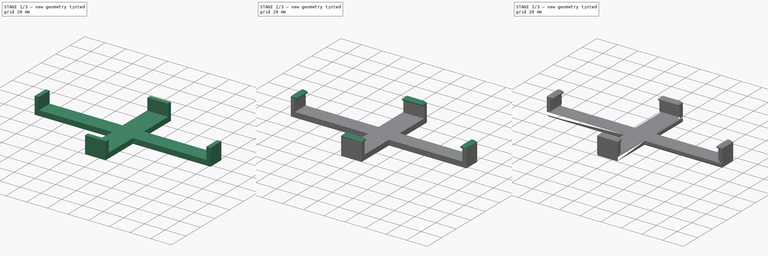
[diagram: build sequence overview — one tinted view per stage of 3, left to right]
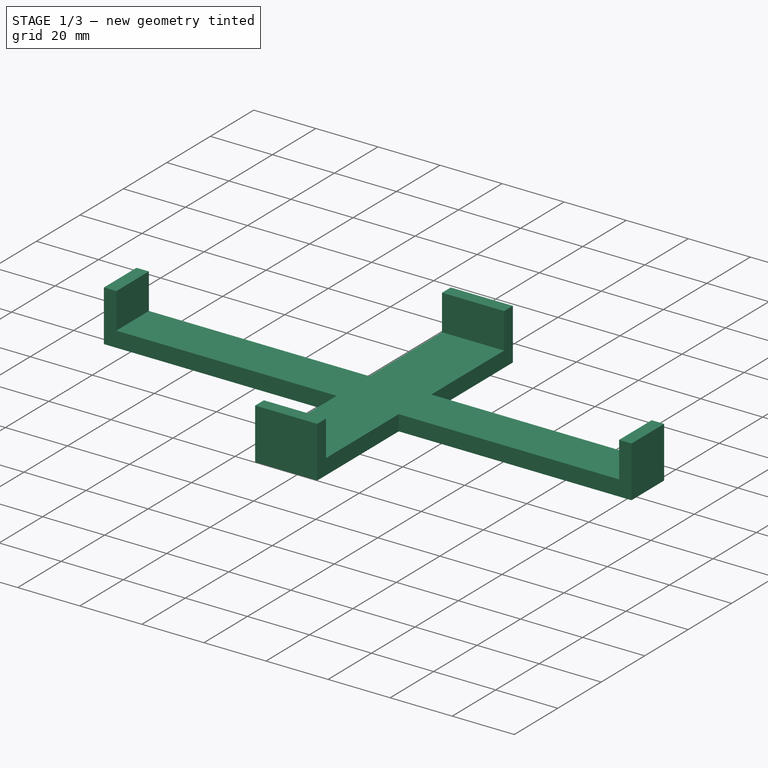
[diagram: stage 1 of 3 — iso view after this stage's code; geometry added in this stage tinted green]
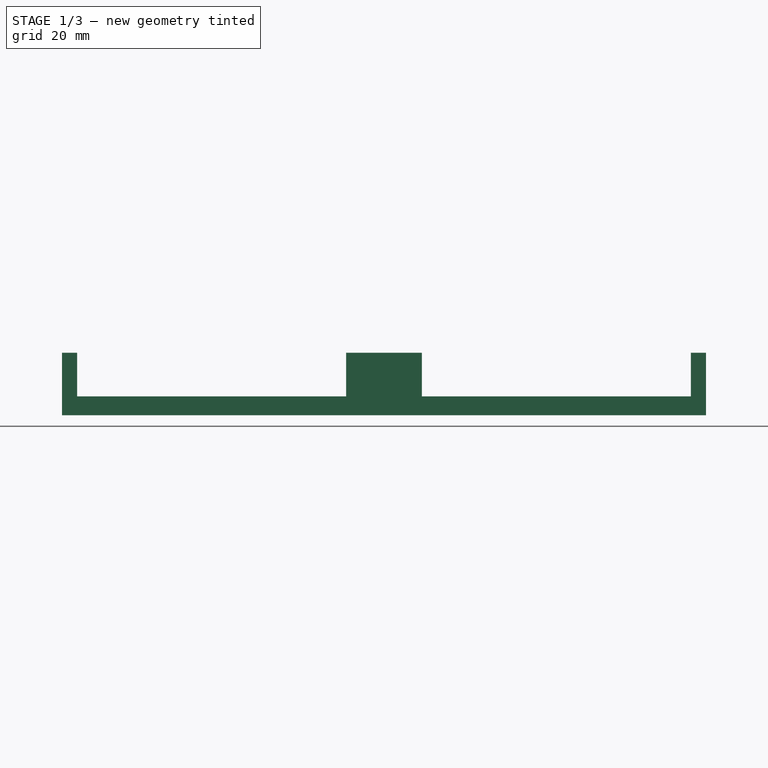
[diagram: stage 1 of 3 — front view after this stage's code; geometry added in this stage tinted green]
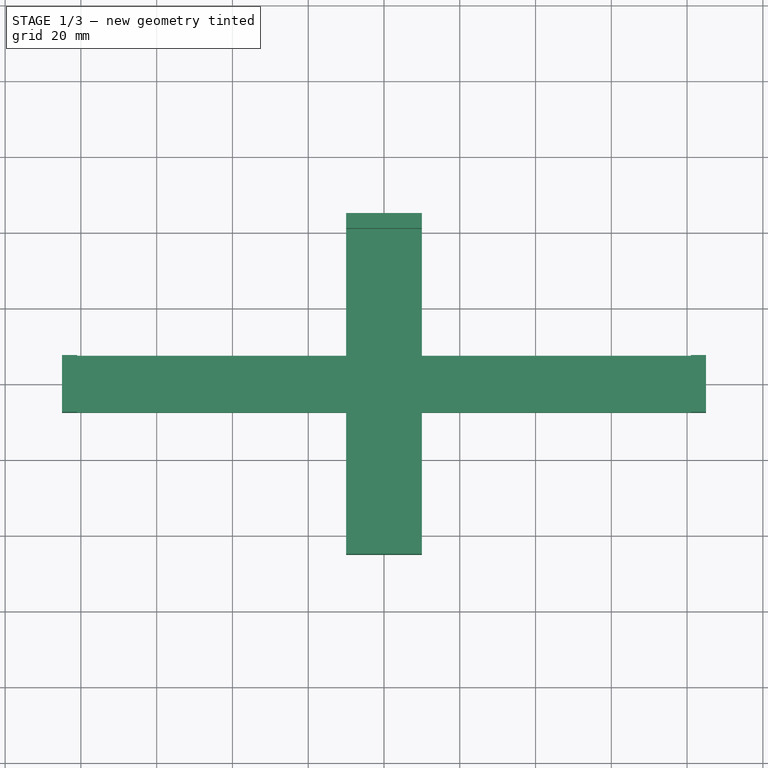
[diagram: stage 1 of 3 — top view after this stage's code; geometry added in this stage tinted green]
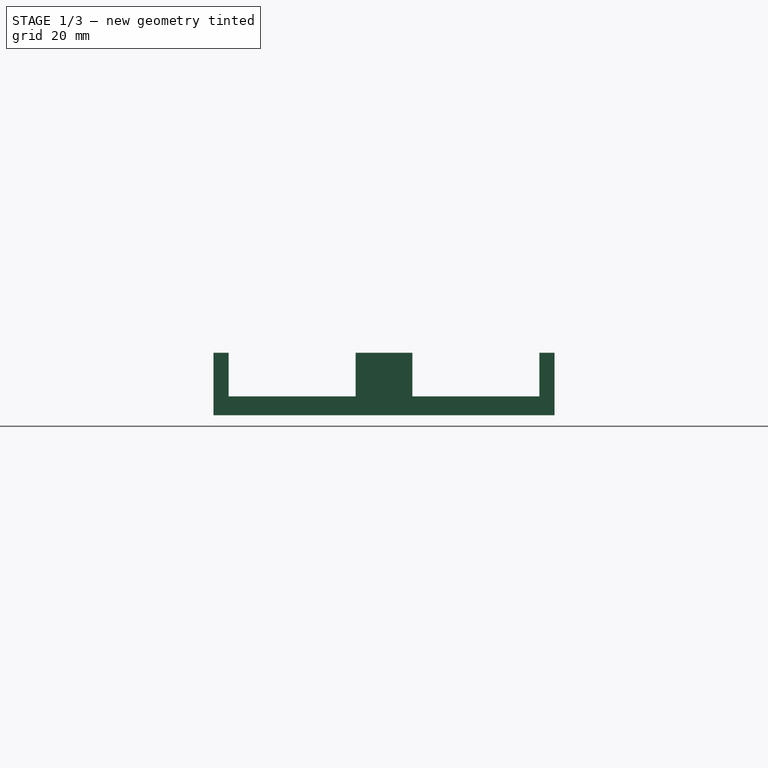
[diagram: stage 1 of 3 — right view after this stage's code; geometry added in this stage tinted green]
FCSTD DOCUMENT  (FreeCAD 0.16R)
Label: pjoneHolder
License: All rights reserved
LicenseURL: http://en.wikipedia.org/wiki/All_rights_reserved
objects: Sketcher::SketchObject×3, PartDesign::Pad×3, PartDesign::Chamfer×3
note: 12 computed .brp shape members not serialized (recipe doc carries the construction recipe); baked Part::Feature solids carry a one-line shape summary decoded from their .brp

FEATURE [Sketcher::SketchObject] Sketch
  sketch-geometry (12):
    g0: LineSegment StartX=-10 StartY=45 StartZ=0 EndX=10 EndY=45 EndZ=0
    g1: LineSegment StartX=10 StartY=45 StartZ=0 EndX=10 EndY=7.5 EndZ=0
    g2: LineSegment StartX=10 StartY=7.5 StartZ=0 EndX=85 EndY=7.5 EndZ=0
    g3: LineSegment StartX=85 StartY=7.5 StartZ=0 EndX=85 EndY=-7.5 EndZ=0
    g4: LineSegment StartX=85 StartY=-7.5 StartZ=0 EndX=10 EndY=-7.5 EndZ=0
    g5: LineSegment StartX=10 StartY=-7.5 StartZ=0 EndX=10 EndY=-45 EndZ=0
    g6: LineSegment StartX=10 StartY=-45 StartZ=0 EndX=-10 EndY=-45 EndZ=0
    g7: LineSegment StartX=-10 StartY=-45 StartZ=0 EndX=-10 EndY=-7.5 EndZ=0
    g8: LineSegment StartX=-10 StartY=-7.5 StartZ=0 EndX=-85 EndY=-7.5 EndZ=0
    g9: LineSegment StartX=-85 StartY=-7.5 StartZ=0 EndX=-85 EndY=7.5 EndZ=0
    g10: LineSegment StartX=-85 StartY=7.5 StartZ=0 EndX=-10 EndY=7.5 EndZ=0
    g11: LineSegment StartX=-10 StartY=7.5 StartZ=0 EndX=-10 EndY=45 EndZ=0
  constraints (33):
    c: Horizontal(g0)
    c: Coincident(g0,g1)
    c: Vertical(g1)
    c: Coincident(g1,g2)
    c: Horizontal(g2)
    c: Coincident(g2,g3)
    c: Coincident(g3,g4)
    c: Horizontal(g4)
    c: Coincident(g4,g5)
    c: Vertical(g5)
    c: Coincident(g5,g6)
    c: Coincident(g6,g7)
    c: Coincident(g7,g8)
    c: Horizontal(g8)
    c: Coincident(g8,g9)
    c: Vertical(g9)
    c: Coincident(g9,g10)
    c: Horizontal(g10)
    c: Coincident(g10,g11)
    c: Coincident(g11,g0)
    c: Vertical(g11)
    c: Vertical(g7)
    c: Vertical(g3)
    c: Symmetric(g0,g0,g-2)
    c: Symmetric(g5,g6,g-2)
    c: Symmetric(g1,g4,g-1)
    c: Symmetric(g10,g7,g-1)
    c: Symmetric(g9,g2,g-2)
    c: Distance(g3) = 15
    c: Distance(g0) = 20
    c: DistanceX(g2) = 85
    c: DistanceY(g0) = 45
    c: Symmetric(g0,g5,g-1)
FEATURE [PartDesign::Pad] Pad
  Length = 5
  Length2 = 100
  Sketch = -> Sketch
  Type = 0
FEATURE [Sketcher::SketchObject] Sketch001
  ExternalGeometry = -> [Pad]
  Placement = pos=(0,0,5) rot=(0,0,1;0rad)
  Support = -> Pad [Face14]
  sketch-geometry (16):
    g0: LineSegment StartX=-85 StartY=7.5 StartZ=0 EndX=-81 EndY=7.5 EndZ=0
    g1: LineSegment StartX=-81 StartY=7.5 StartZ=0 EndX=-81 EndY=-7.5 EndZ=0
    g2: LineSegment StartX=-81 StartY=-7.5 StartZ=0 EndX=-85 EndY=-7.5 EndZ=0
    g3: LineSegment StartX=-85 StartY=-7.5 StartZ=0 EndX=-85 EndY=7.5 EndZ=0
    g4: LineSegment StartX=85 StartY=7.5 StartZ=0 EndX=81 EndY=7.5 EndZ=0
    g5: LineSegment StartX=81 StartY=7.5 StartZ=0 EndX=81 EndY=-7.5 EndZ=0
    g6: LineSegment StartX=81 StartY=-7.5 StartZ=0 EndX=85 EndY=-7.5 EndZ=0
    g7: LineSegment StartX=85 StartY=-7.5 StartZ=0 EndX=85 EndY=7.5 EndZ=0
    g8: LineSegment StartX=-10 StartY=45 StartZ=0 EndX=10 EndY=45 EndZ=0
    g9: LineSegment StartX=10 StartY=45 StartZ=0 EndX=10 EndY=41 EndZ=0
    g10: LineSegment StartX=10 StartY=41 StartZ=0 EndX=-10 EndY=41 EndZ=0
    g11: LineSegment StartX=-10 StartY=41 StartZ=0 EndX=-10 EndY=45 EndZ=0
    g12: LineSegment StartX=-10 StartY=-41 StartZ=0 EndX=10 EndY=-41 EndZ=0
    g13: LineSegment StartX=10 StartY=-41 StartZ=0 EndX=10 EndY=-45 EndZ=0
    g14: LineSegment StartX=10 StartY=-45 StartZ=0 EndX=-10 EndY=-45 EndZ=0
    g15: LineSegment StartX=-10 StartY=-45 StartZ=0 EndX=-10 EndY=-41 EndZ=0
  constraints (44):
    c: Coincident(g0,g1)
    c: Coincident(g1,g2)
    c: Coincident(g2,g3)
    c: Coincident(g3,g0)
    c: Horizontal(g0)
    c: Horizontal(g2)
    c: Vertical(g1)
    c: Vertical(g3)
    c: Coincident(g4,g5)
    c: Coincident(g5,g6)
    c: Coincident(g6,g7)
    c: Coincident(g7,g4)
    c: Horizontal(g4)
    c: Horizontal(g6)
    c: Vertical(g5)
    c: Vertical(g7)
    c: Coincident(g8,g9)
    c: Coincident(g9,g10)
    c: Coincident(g10,g11)
    c: Coincident(g11,g8)
    c: Horizontal(g8)
    c: Horizontal(g10)
    c: Vertical(g9)
    c: Vertical(g11)
    c: Coincident(g12,g13)
    c: Coincident(g13,g14)
    c: Coincident(g14,g15)
    c: Coincident(g15,g12)
    c: Horizontal(g12)
    c: Horizontal(g14)
    c: Vertical(g13)
    c: Vertical(g15)
    c: DistanceY(g15,g15) = 4
    c: DistanceX(g4,g4) = 4
    c: DistanceX(g0,g0) = 4
    c: DistanceY(g9,g9) = 4
    c: Coincident(g0,g-3)
    c: Coincident(g2,g-3)
    c: Coincident(g6,g-4)
    c: Coincident(g4,g-4)
    c: Coincident(g8,g-5)
    c: Coincident(g8,g-5)
    c: Coincident(g14,g-6)
    c: Coincident(g-6,g13)
FEATURE [PartDesign::Pad] Pad001
  Length = 11.5
  Length2 = 100
  Sketch = -> Sketch001
  Type = 0
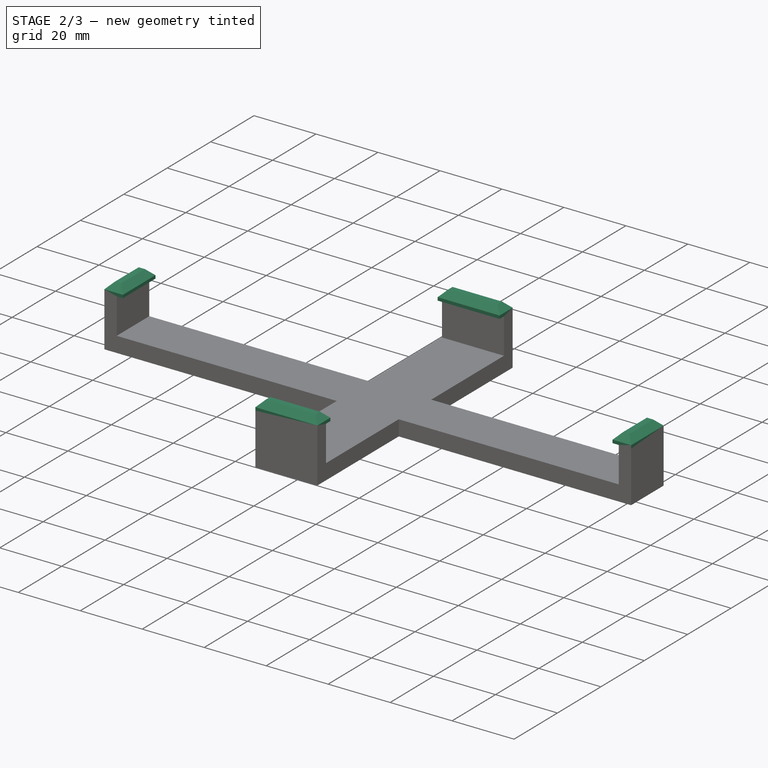
[diagram: stage 2 of 3 — iso view after this stage's code; geometry added in this stage tinted green]
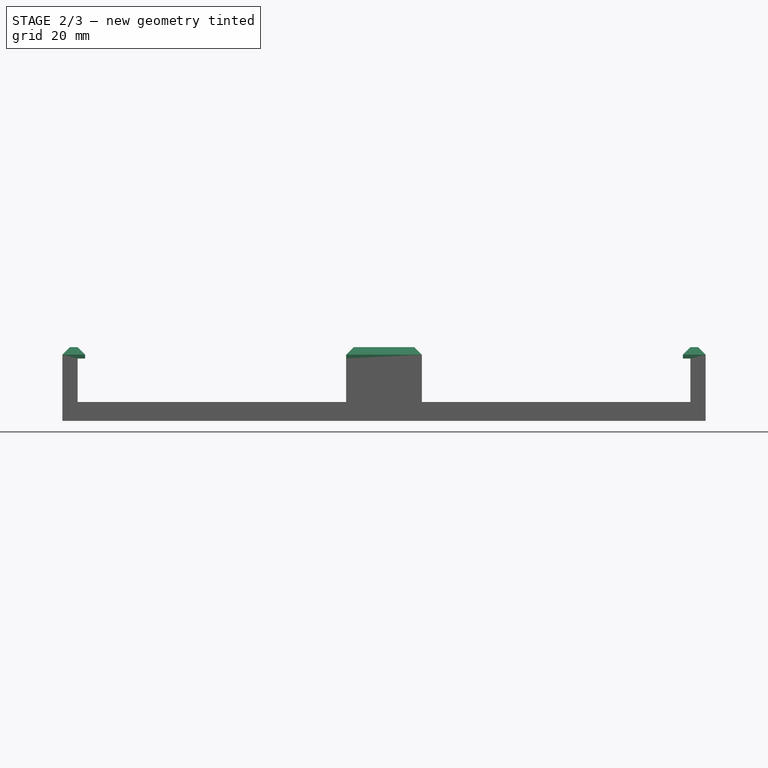
[diagram: stage 2 of 3 — front view after this stage's code; geometry added in this stage tinted green]
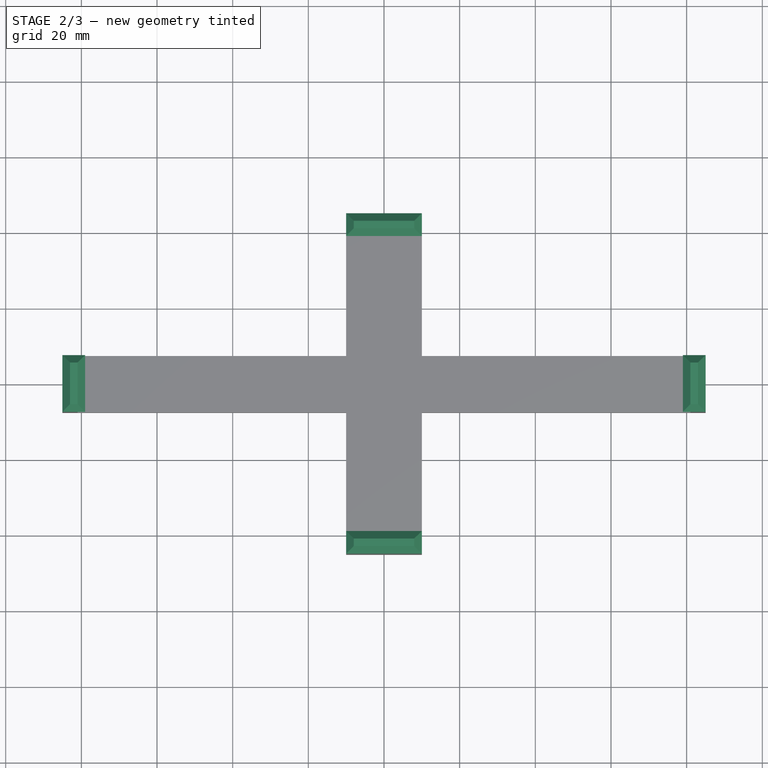
[diagram: stage 2 of 3 — top view after this stage's code; geometry added in this stage tinted green]
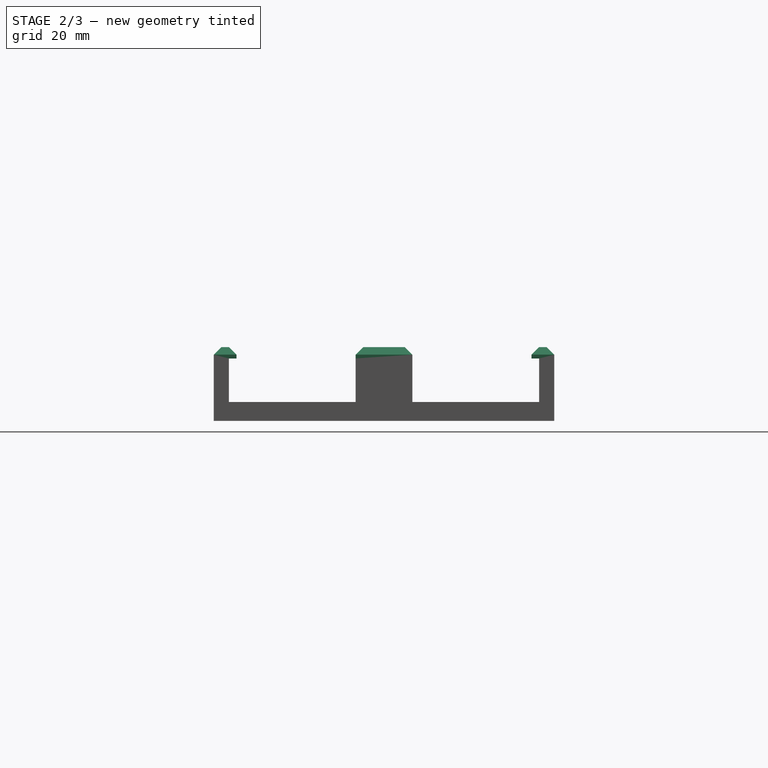
[diagram: stage 2 of 3 — right view after this stage's code; geometry added in this stage tinted green]
FEATURE [Sketcher::SketchObject] Sketch002
  ExternalGeometry = -> [Pad001]
  Placement = pos=(0,0,16.5) rot=(0,0,1;0rad)
  Support = -> Pad001 [Face27]
  sketch-geometry (16):
    g0: LineSegment StartX=-10 StartY=45 StartZ=0 EndX=10 EndY=45 EndZ=0
    g1: LineSegment StartX=10 StartY=45 StartZ=0 EndX=10 EndY=39 EndZ=0
    g2: LineSegment StartX=10 StartY=39 StartZ=0 EndX=-10 EndY=39 EndZ=0
    g3: LineSegment StartX=-10 StartY=39 StartZ=0 EndX=-10 EndY=45 EndZ=0
    g4: LineSegment StartX=79 StartY=7.5 StartZ=0 EndX=85 EndY=7.5 EndZ=0
    g5: LineSegment StartX=85 StartY=7.5 StartZ=0 EndX=85 EndY=-7.5 EndZ=0
    g6: LineSegment StartX=85 StartY=-7.5 StartZ=0 EndX=79 EndY=-7.5 EndZ=0
    g7: LineSegment StartX=79 StartY=-7.5 StartZ=0 EndX=79 EndY=7.5 EndZ=0
    g8: LineSegment StartX=10 StartY=-45 StartZ=0 EndX=-10 EndY=-45 EndZ=0
    g9: LineSegment StartX=-10 StartY=-45 StartZ=0 EndX=-10 EndY=-39 EndZ=0
    g10: LineSegment StartX=-10 StartY=-39 StartZ=0 EndX=10 EndY=-39 EndZ=0
    g11: LineSegment StartX=10 StartY=-39 StartZ=0 EndX=10 EndY=-45 EndZ=0
    g12: LineSegment StartX=-85 StartY=7.5 StartZ=0 EndX=-79 EndY=7.5 EndZ=0
    g13: LineSegment StartX=-79 StartY=7.5 StartZ=0 EndX=-79 EndY=-7.5 EndZ=0
    g14: LineSegment StartX=-79 StartY=-7.5 StartZ=0 EndX=-85 EndY=-7.5 EndZ=0
    g15: LineSegment StartX=-85 StartY=-7.5 StartZ=0 EndX=-85 EndY=7.5 EndZ=0
  constraints (44):
    c: Coincident(g0,g1)
    c: Coincident(g1,g2)
    c: Coincident(g2,g3)
    c: Coincident(g3,g0)
    c: Horizontal(g0)
    c: Horizontal(g2)
    c: Vertical(g1)
    c: Vertical(g3)
    c: Coincident(g4,g5)
    c: Coincident(g5,g6)
    c: Coincident(g6,g7)
    c: Coincident(g7,g4)
    c: Horizontal(g4)
    c: Horizontal(g6)
    c: Vertical(g5)
    c: Vertical(g7)
    c: Coincident(g8,g9)
    c: Coincident(g9,g10)
    c: Coincident(g10,g11)
    c: Coincident(g11,g8)
    c: Horizontal(g8)
    c: Horizontal(g10)
    c: Vertical(g9)
    c: Vertical(g11)
    c: Coincident(g12,g13)
    c: Coincident(g13,g14)
    c: Coincident(g14,g15)
    c: Coincident(g15,g12)
    c: Horizontal(g12)
    c: Horizontal(g14)
    c: Vertical(g13)
    c: Vertical(g15)
    c: Equal(g12,g4)
    c: Equal(g4,g1)
    c: Equal(g1,g11)
    c: Distance(g3) = 6
    c: Coincident(g14,g-3)
    c: Coincident(g12,g-3)
    c: Coincident(g0,g-5)
    c: Coincident(g0,g-5)
    c: Coincident(g4,g-4)
    c: Coincident(g5,g-4)
    c: Coincident(g8,g-6)
    c: Coincident(g8,g-6)
FEATURE [PartDesign::Pad] Pad002
  Length = 3
  Length2 = 100
  Sketch = -> Sketch002
  Type = 0
FEATURE [PartDesign::Chamfer] Chamfer
  Base = -> Pad002 [Edge111,Edge124,Edge107,Edge109,Edge78,Edge80,Edge117,Edge116,Edge100,Edge102,Edge123,Edge98,Edge89,Edge91,Edge93,Edge122]
  Size = 2
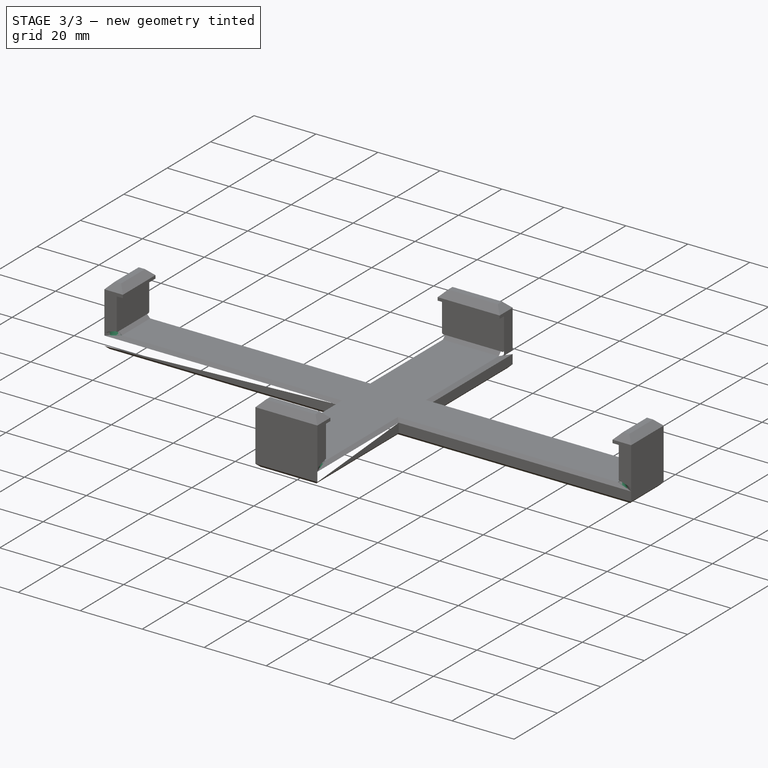
[diagram: stage 3 of 3 — iso view after this stage's code; geometry added in this stage tinted green]
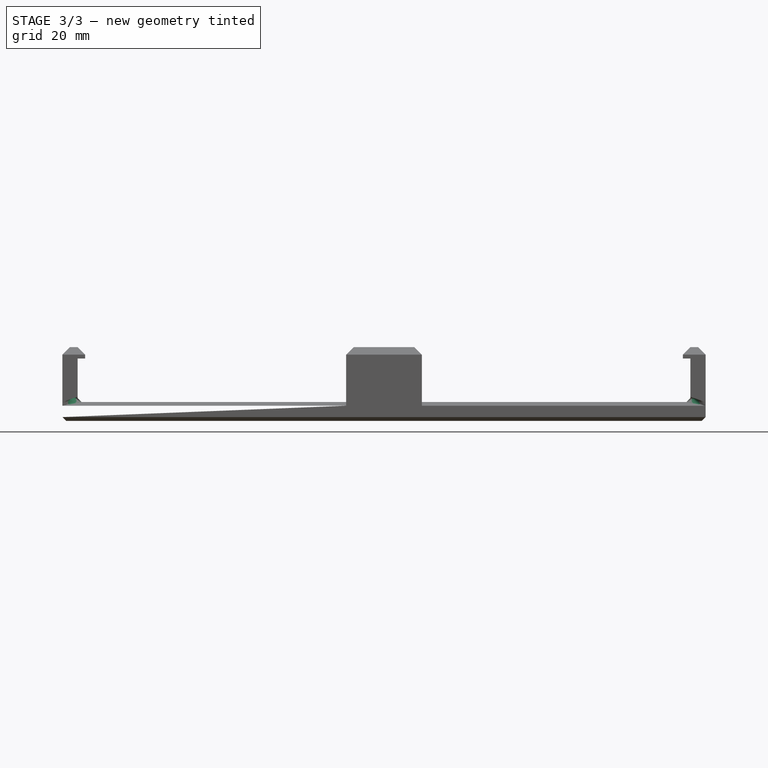
[diagram: stage 3 of 3 — front view after this stage's code; geometry added in this stage tinted green]
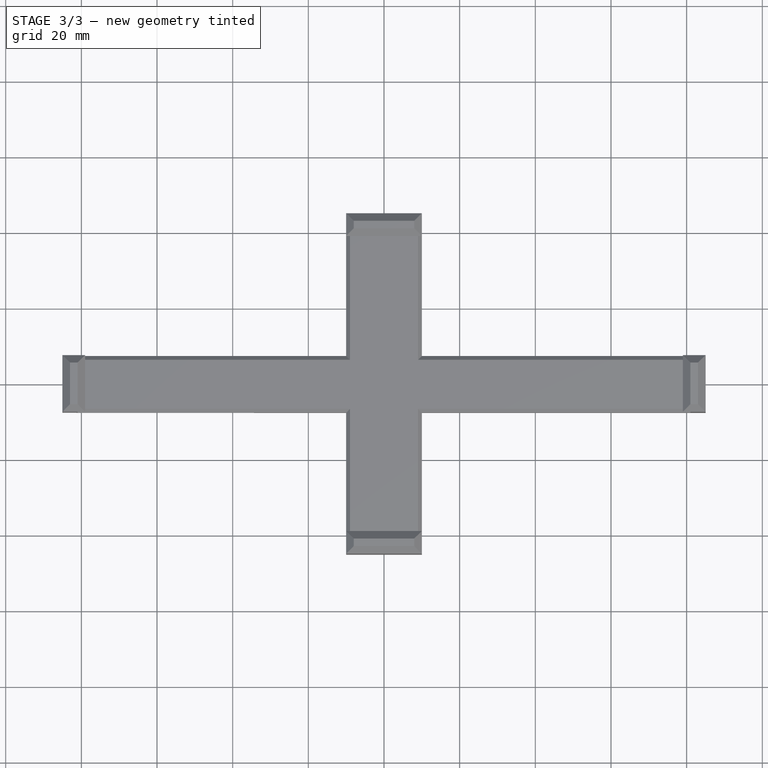
[diagram: stage 3 of 3 — top view after this stage's code; geometry added in this stage tinted green]
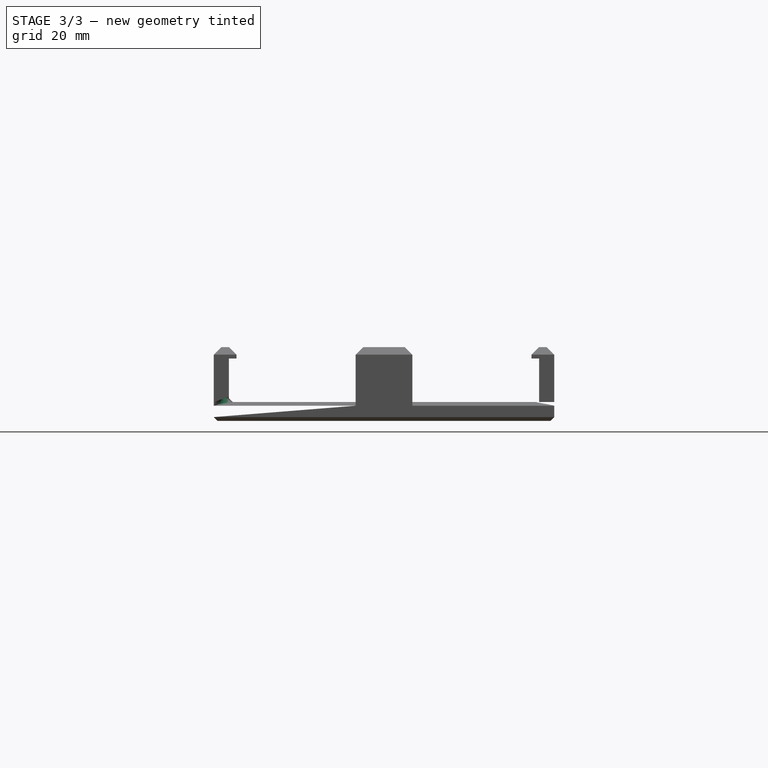
[diagram: stage 3 of 3 — right view after this stage's code; geometry added in this stage tinted green]
FEATURE [PartDesign::Chamfer] Chamfer001
  Base = -> Chamfer [Edge30,Edge38,Edge39,Edge40,Edge41,Edge42,Edge43,Edge44,Edge45,Edge46,Edge47,Edge36]
  Size = 1
FEATURE [PartDesign::Chamfer] Chamfer002
  Base = -> Chamfer001 [Edge7,Edge22,Edge25,Edge26,Edge27,Edge28,Edge29,Edge30,Edge31,Edge32,Edge18,Edge33]
  Size = 1
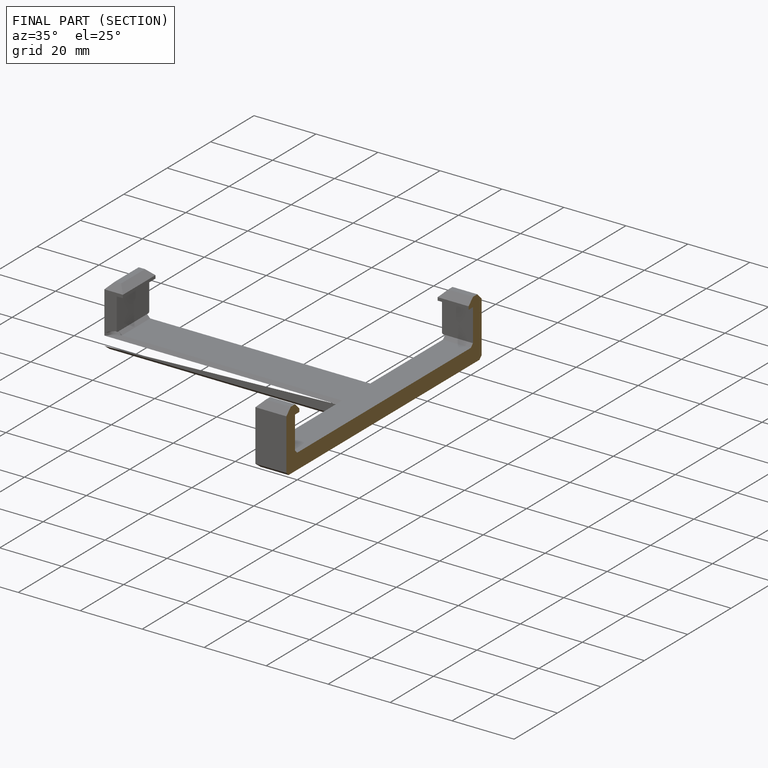
[diagram: finished part — half-section view (interior)]
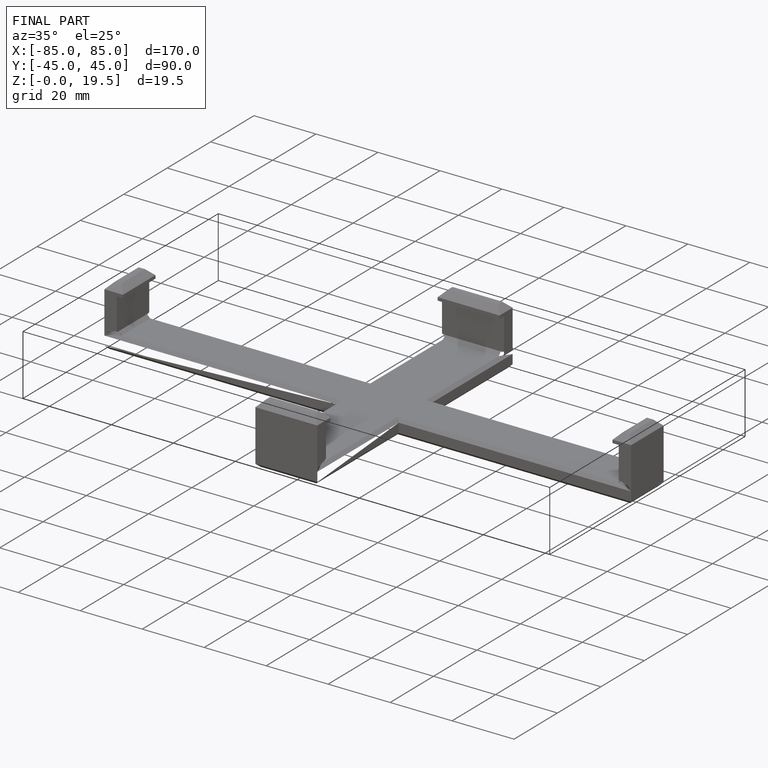
[diagram: finished part — iso view with bounding-box wireframe]
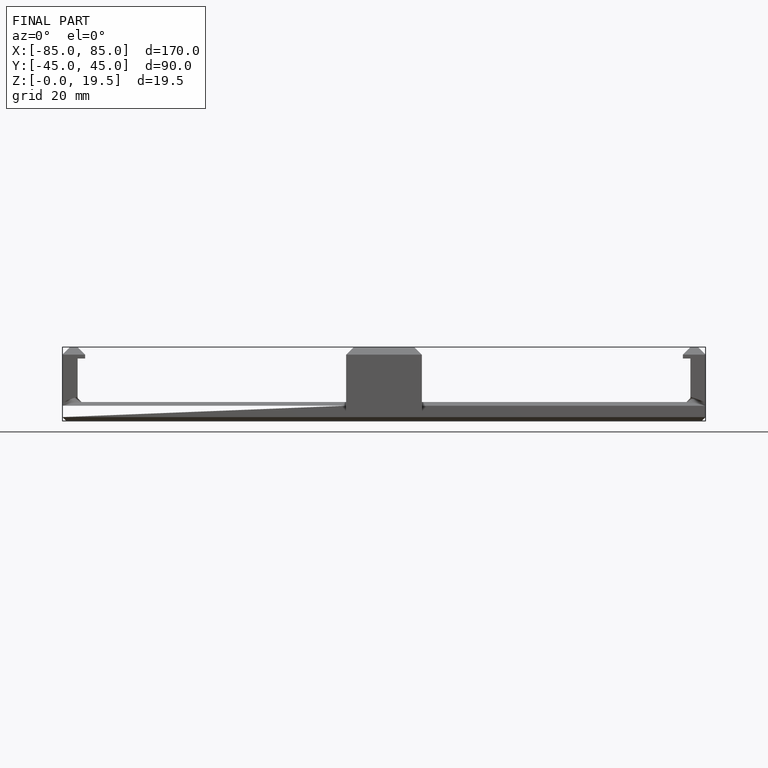
[diagram: finished part — front view with bounding-box wireframe]
